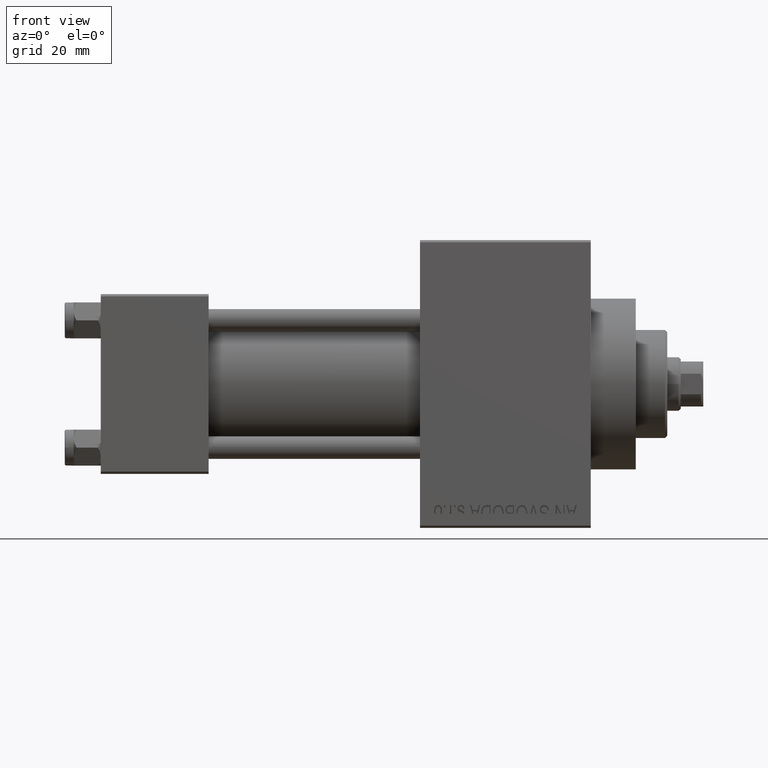
[diagram: clean part render]
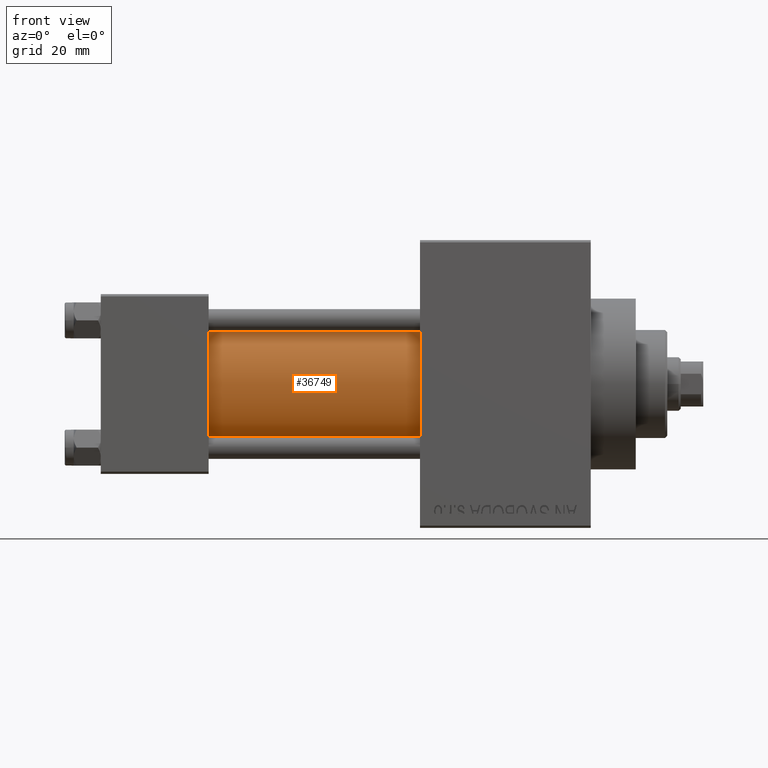
[diagram: same view with one face highlighted and labeled with its STEP entity id]
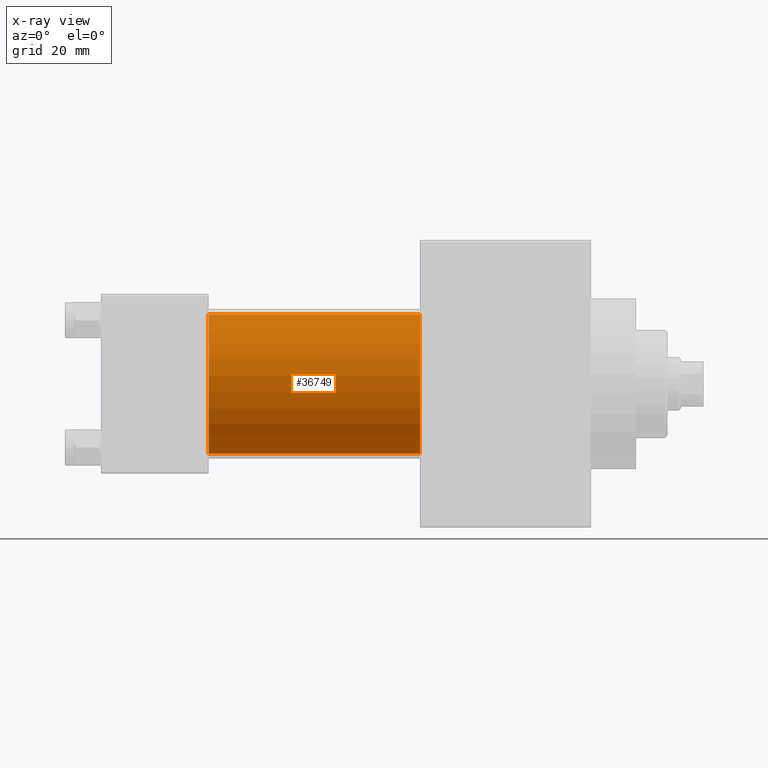
[diagram: x-ray of the same camera — body ghosted, the highlighted face saturated]
A machine part, front view. The second image highlights one B-rep face of the part: STEP entity #36749.
The next image is the same camera in x-ray: the body ghosted, the highlighted face saturated — about 0% of this face is hidden behind the body in this view.
In plain terms, the highlighted cylindrical surface (partial cylindrical patch) has radius 15.5 mm, axis along (-1, -0, -0).
Its self-contained STEP definition (entity closure, byte-faithful):
#1962 = EDGE_CURVE ( 'NONE', #7757, #38068, #12990, .T. ) ;
#2536 = CARTESIAN_POINT ( 'NONE',  ( 24.00000000000000000, -2.602085213965210642E-15, 0.000000000000000000 ) ) ;
#3546 = AXIS2_PLACEMENT_3D ( 'NONE', #22316, #3750, #37431 ) ;
#3622 = EDGE_LOOP ( 'NONE', ( #26845, #23921, #46031, #33377 ) ) ;
#3750 = DIRECTION ( 'NONE',  ( -1.000000000000000000, -0.000000000000000000, -0.000000000000000000 ) ) ;
#7101 = CARTESIAN_POINT ( 'NONE',  ( 71.00000000000001421, -2.602085213965210642E-15, 15.50000000000000000 ) ) ;
#7757 = VERTEX_POINT ( 'NONE', #24765 ) ;
#9905 = CARTESIAN_POINT ( 'NONE',  ( 24.00000000000000000, -2.602085213965210642E-15, 15.50000000000000000 ) ) ;
#10021 = AXIS2_PLACEMENT_3D ( 'NONE', #2536, #13691, #43195 ) ;
#10724 = CARTESIAN_POINT ( 'NONE',  ( 71.00000000000001421, -2.602085213965210642E-15, 0.000000000000000000 ) ) ;
#11399 = AXIS2_PLACEMENT_3D ( 'NONE', #10724, #40218, #25812 ) ;
#11842 = CARTESIAN_POINT ( 'NONE',  ( 24.00000000000000000, -7.038826752868131828E-16, -15.50000000000000000 ) ) ;
#12990 = CIRCLE ( 'NONE', #11399, 15.50000000000000000 ) ;
#13691 = DIRECTION ( 'NONE',  ( 1.000000000000000000, 0.000000000000000000, 0.000000000000000000 ) ) ;
#20128 = VECTOR ( 'NONE', #31517, 1000.000000000000000 ) ;
#22191 = DIRECTION ( 'NONE',  ( -1.000000000000000000, -0.000000000000000000, -0.000000000000000000 ) ) ;
#22316 = CARTESIAN_POINT ( 'NONE',  ( 71.00000000000001421, -2.602085213965210642E-15, 0.000000000000000000 ) ) ;
#22561 = FACE_OUTER_BOUND ( 'NONE', #3622, .T. ) ;
#23921 = ORIENTED_EDGE ( 'NONE', *, *, #1962, .F. ) ;
#24066 = LINE ( 'NONE', #42443, #20128 ) ;
#24765 = CARTESIAN_POINT ( 'NONE',  ( 71.00000000000001421, -2.602085213965210642E-15, 15.50000000000000000 ) ) ;
#25812 = DIRECTION ( 'NONE',  ( 0.000000000000000000, 0.000000000000000000, -1.000000000000000000 ) ) ;
#26103 = CARTESIAN_POINT ( 'NONE',  ( 71.00000000000001421, -7.038826752868131828E-16, -15.50000000000000000 ) ) ;
#26150 = LINE ( 'NONE', #7101, #36756 ) ;
#26845 = ORIENTED_EDGE ( 'NONE', *, *, #44998, .F. ) ;
#29892 = VERTEX_POINT ( 'NONE', #11842 ) ;
#31517 = DIRECTION ( 'NONE',  ( -1.000000000000000000, -0.000000000000000000, -0.000000000000000000 ) ) ;
#33377 = ORIENTED_EDGE ( 'NONE', *, *, #48820, .T. ) ;
#34739 = EDGE_CURVE ( 'NONE', #7757, #36321, #26150, .T. ) ;
#36321 = VERTEX_POINT ( 'NONE', #9905 ) ;
#36749 = ADVANCED_FACE ( 'NONE', ( #22561 ), #37683, .T. ) ;
#36756 = VECTOR ( 'NONE', #22191, 1000.000000000000000 ) ;
#37431 = DIRECTION ( 'NONE',  ( 0.000000000000000000, 0.000000000000000000, 1.000000000000000000 ) ) ;
#37683 = CYLINDRICAL_SURFACE ( 'NONE', #3546, 15.50000000000000000 ) ;
#38068 = VERTEX_POINT ( 'NONE', #26103 ) ;
#39290 = CIRCLE ( 'NONE', #10021, 15.50000000000000000 ) ;
#40218 = DIRECTION ( 'NONE',  ( 1.000000000000000000, 0.000000000000000000, 0.000000000000000000 ) ) ;
#42443 = CARTESIAN_POINT ( 'NONE',  ( 71.00000000000001421, -7.038826752868131828E-16, -15.50000000000000000 ) ) ;
#43195 = DIRECTION ( 'NONE',  ( 0.000000000000000000, 0.000000000000000000, 1.000000000000000000 ) ) ;
#44998 = EDGE_CURVE ( 'NONE', #38068, #29892, #24066, .T. ) ;
#46031 = ORIENTED_EDGE ( 'NONE', *, *, #34739, .T. ) ;
#48820 = EDGE_CURVE ( 'NONE', #36321, #29892, #39290, .T. ) ;